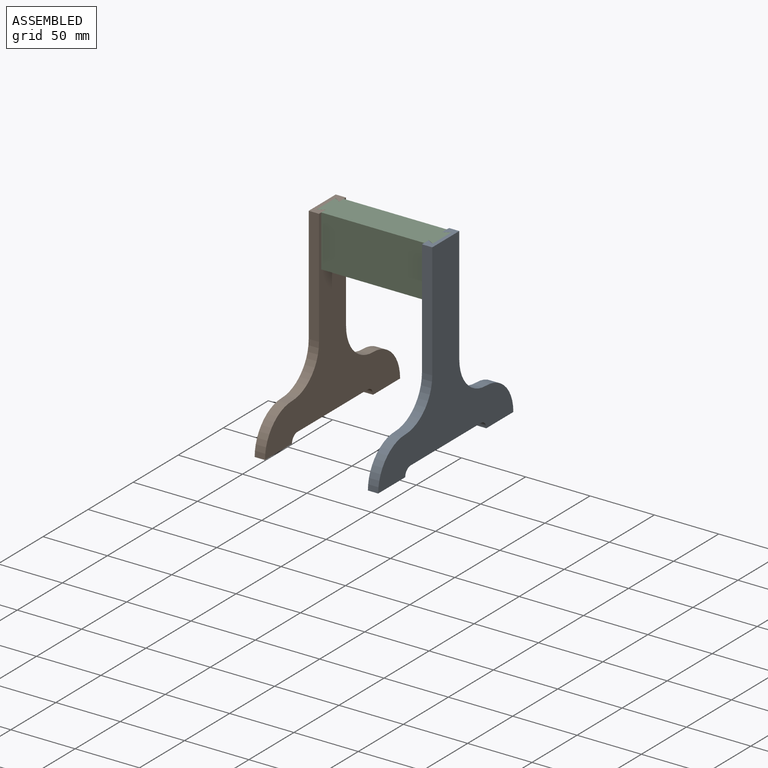
[diagram: assembled view]
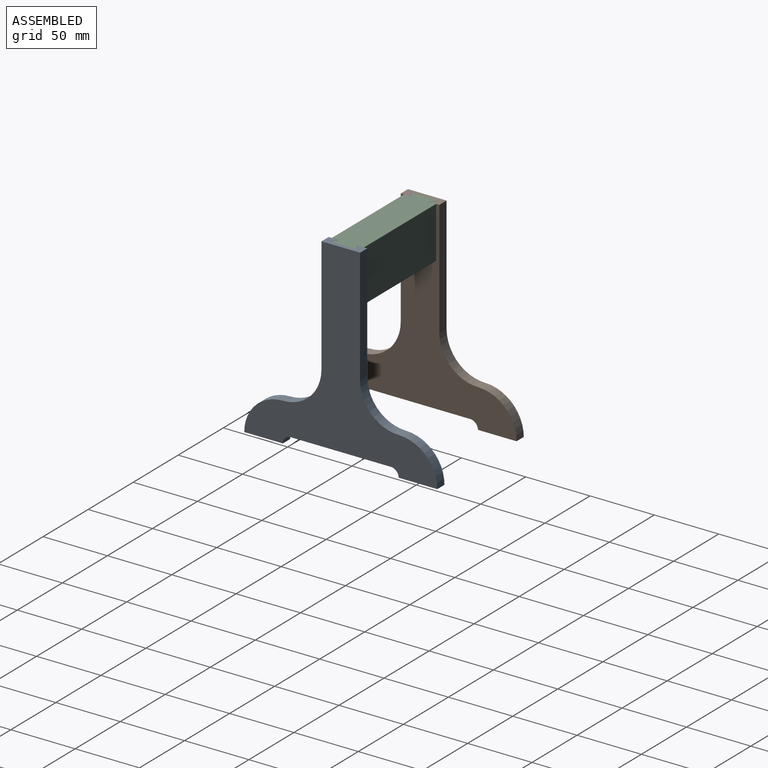
[diagram: assembled view, second angle]
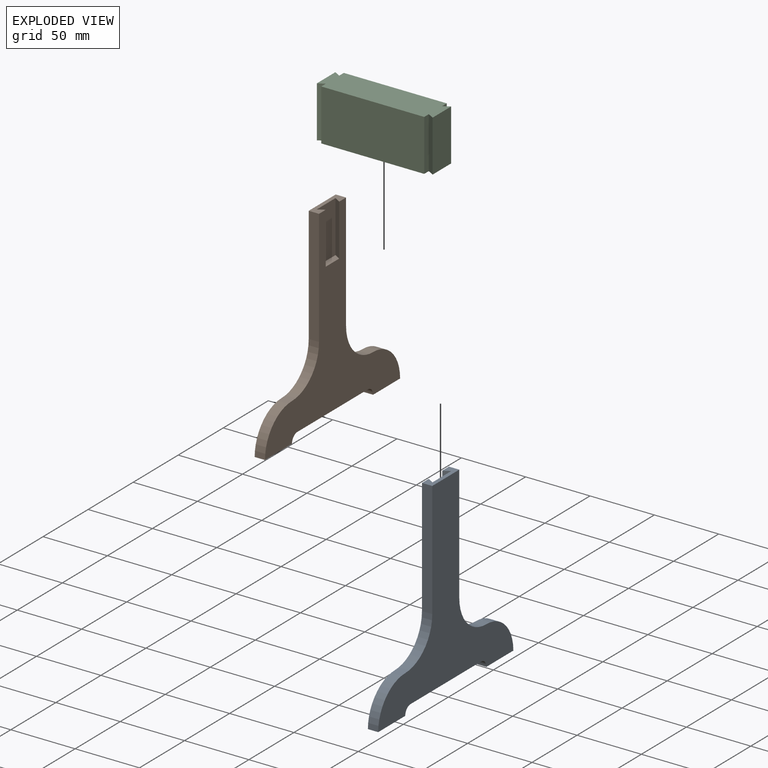
[diagram: exploded view]
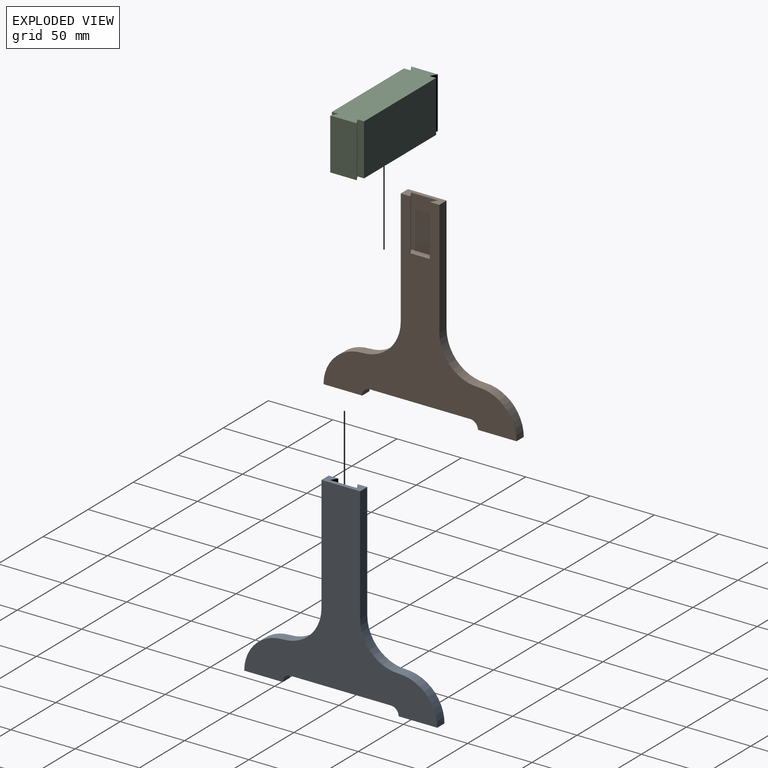
[diagram: exploded view, second angle]
ASSEMBLY  parts=3 mates=2
PART A: 18 faces, bbox 8x150x150 mm
  f0: plane 30x8mm, normal (0,0,-1), area 240mm2, adj f1,f2,f12,f16
  f1: plane 150x150mm, normal (1,0,0), area 7575.5mm2, adj f0,f3,f4,f5,f6,f11,f12,f13
  f2: plane 150x150mm, normal (-1,0,0), area 6975.5mm2, adj f0,f3,f4,f5,f6,f7,f8,f10
  f3: plane 30x8mm, normal (0,0,-1), area 240mm2, adj f1,f2,f13,f15
  f4: plane 90x8mm, normal (0,1,0), area 720mm2, adj f1,f2,f5,f11
  f5: plane 30x8mm, normal (0,0,1), area 150.6mm2, adj f1,f2,f4,f6,f7,f8,f9
  f6: plane 90x8mm, normal (0,-1,0), area 720mm2, adj f1,f2,f5,f14
  f7: plane 40x5mm, normal (0.5,-0.87,0), area 230.9mm2, adj f2,f5,f9,f10
  f8: plane 40x5mm, normal (0.5,0.87,0), area 230.9mm2, adj f2,f5,f9,f10
  f9: plane 40x20.77mm, normal (-1,0,0), area 830.9mm2, adj f5,f7,f8,f10
  f10: plane 20.77x5mm, normal (0,0,1), area 89.4mm2, adj f2,f7,f8,f9
  f11: cylinder r=30mm len=30mm, axis (-1,0,0), area 377mm2, adj f1,f2,f4,f12
  f12: cylinder r=30mm len=30mm, axis (-1,0,0), area 377mm2, adj f0,f1,f2,f11
  f13: cylinder r=30mm len=30mm, axis (-1,0,0), area 377mm2, adj f1,f2,f3,f14
  f14: cylinder r=30mm len=30mm, axis (-1,0,0), area 377mm2, adj f1,f2,f6,f13
  f15: cylinder r=6mm len=8mm, axis (1,0,0), area 75.4mm2, adj f1,f2,f3,f17
  f16: cylinder r=6mm len=8mm, axis (1,0,0), area 75.4mm2, adj f0,f1,f2,f17
  f17: plane 78x8mm, normal (0,0,-1), area 624mm2, adj f1,f2,f15,f16
PART B: same geometry as A
PART C: 14 faces, bbox 90x25x40 mm
  f0: plane 40x5.1mm, normal (-1,0,0), area 204mm2, adj f3,f4,f5,f13
  f1: plane 40x5.1mm, normal (1,0,0), area 204mm2, adj f3,f4,f5,f9
  f2: plane 80x40mm, normal (0,-1,0), area 3200mm2, adj f3,f5,f6,f7
  f3: plane 90x25mm, normal (0,0,-1), area 2176.9mm2, adj f0,f1,f2,f4,f6,f7,f8,f9
  f4: plane 80x40mm, normal (0,1,0), area 3200mm2, adj f0,f1,f3,f5
  f5: plane 90x25mm, normal (0,0,1), area 2176.9mm2, adj f0,f1,f2,f4,f6,f7,f8,f9
  f6: plane 40x5.1mm, normal (1,0,0), area 204mm2, adj f2,f3,f5,f8
  f7: plane 40x5.1mm, normal (-1,0,0), area 204mm2, adj f2,f3,f5,f11
  f8: plane 40x5mm, normal (-0.5,-0.87,0), area 230.9mm2, adj f3,f5,f6,f10
  f9: plane 40x5mm, normal (-0.5,0.87,0), area 230.9mm2, adj f1,f3,f5,f10
  f10: plane 40x20.57mm, normal (1,0,0), area 822.9mm2, adj f3,f5,f8,f9
  f11: plane 40x5mm, normal (0.5,-0.87,0), area 230.9mm2, adj f3,f5,f7,f12
  f12: plane 40x20.57mm, normal (-1,0,0), area 822.9mm2, adj f3,f5,f11,f13
  f13: plane 40x5mm, normal (0.5,0.87,0), area 230.9mm2, adj f0,f3,f5,f12
PLACE A t=(40,0,-110)mm
PLACE B rot(axis=(0,0,1),180deg) t=(-40,0,-110)mm
PLACE C at identity
MATE planar B.f10 <-> C.f3  axis (0,0,1) through (-45,0,0)mm
MATE planar A.f10 <-> C.f3  axis (0,0,1) through (45,0,0)mm
